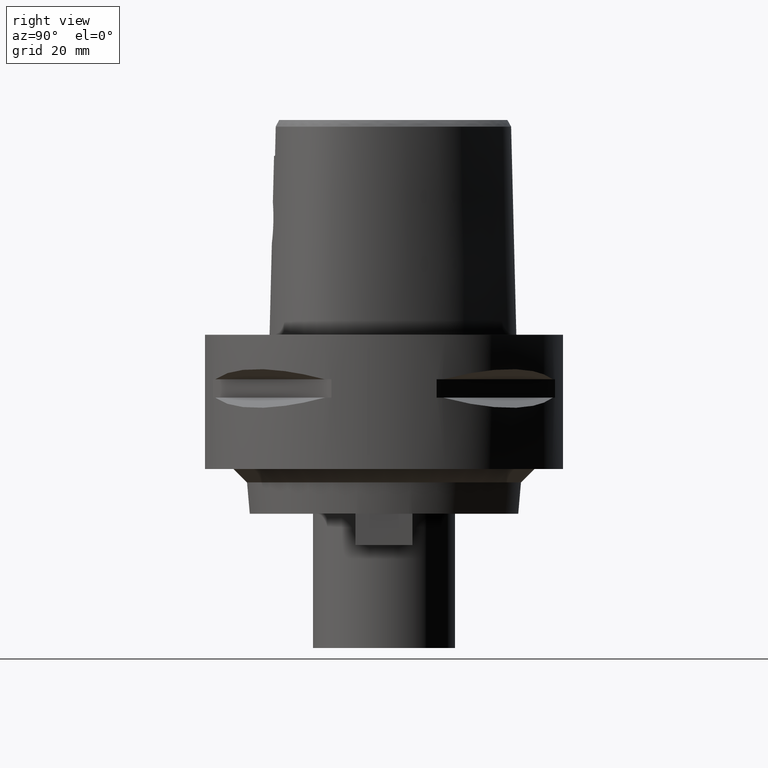
[diagram: clean part render]
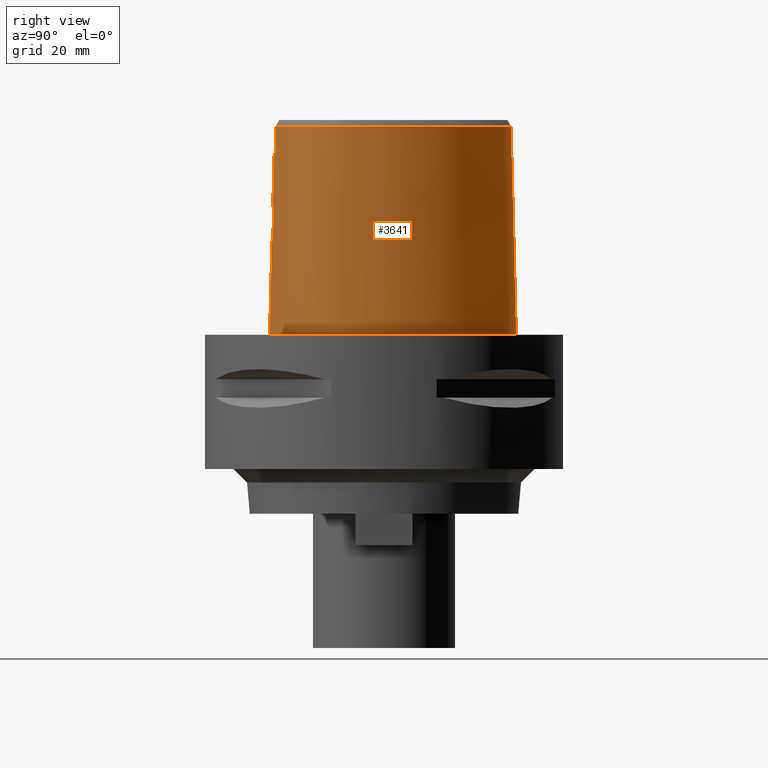
[diagram: same view with one face highlighted and labeled with its STEP entity id]
A machine part, right view. The second image highlights one B-rep face of the part: STEP entity #3641.
In plain terms, the highlighted face is a freeform B-spline surface patch.
Its self-contained STEP definition (entity closure, byte-faithful):
#136=CARTESIAN_POINT('',(4.472216720977E0,-2.420009030094E1,4.652069014669E1));
#146=CARTESIAN_POINT('',(-1.160764204055E-11,2.841206021535E1,
4.652071719451E1));
#147=CARTESIAN_POINT('',(4.335952336948E-1,2.841206021535E1,4.652071719450E1));
#148=CARTESIAN_POINT('',(1.298836000835E0,2.836960455487E1,4.652067124128E1));
#149=CARTESIAN_POINT('',(2.668499733405E0,2.816772072700E1,4.652072146498E1));
#150=CARTESIAN_POINT('',(4.103939706338E0,2.781317689664E1,4.652071702535E1));
#151=CARTESIAN_POINT('',(5.631402844044E0,2.727961259150E1,4.652071747526E1));
#152=CARTESIAN_POINT('',(7.176786529188E0,2.657653322831E1,4.652071613038E1));
#153=CARTESIAN_POINT('',(8.671252192221E0,2.574575701556E1,4.652072015318E1));
#154=CARTESIAN_POINT('',(1.015834870719E1,2.477318902836E1,4.652071082714E1));
#155=CARTESIAN_POINT('',(1.164832990643E1,2.364853177835E1,4.652072155981E1));
#156=CARTESIAN_POINT('',(1.312875962270E1,2.237825656012E1,4.652070888465E1));
#157=CARTESIAN_POINT('',(1.465098553460E1,2.090813162662E1,4.652072245798E1));
#158=CARTESIAN_POINT('',(1.626652832913E1,1.914957051098E1,4.652071450567E1));
#159=CARTESIAN_POINT('',(1.795563320286E1,1.706783974962E1,4.652071539184E1));
#160=CARTESIAN_POINT('',(1.975363834855E1,1.453473446753E1,4.652071347705E1));
#161=CARTESIAN_POINT('',(2.155716936923E1,1.155822634124E1,4.652072197703E1));
#162=CARTESIAN_POINT('',(2.306697559456E1,8.587424616191E0,4.652070100358E1));
#163=CARTESIAN_POINT('',(2.421004627175E1,5.895354429100E0,4.652073244141E1));
#164=CARTESIAN_POINT('',(2.505015637482E1,3.510146821122E0,4.652070587330E1));
#165=CARTESIAN_POINT('',(2.567078959280E1,1.343166075869E0,4.652072043837E1));
#166=CARTESIAN_POINT('',(2.611902555100E1,-6.678828843788E-1,4.652071500157E1));
#167=CARTESIAN_POINT('',(2.642053489398E1,-2.557286489412E0,4.652071677108E1));
#168=CARTESIAN_POINT('',(2.659104019638E1,-4.357617801450E0,4.652072398063E1));
#169=CARTESIAN_POINT('',(2.663599417218E1,-6.104319423169E0,4.652071791304E1));
#170=CARTESIAN_POINT('',(2.655096538778E1,-7.807175622504E0,4.652072592456E1));
#171=CARTESIAN_POINT('',(2.632808500539E1,-9.453711419702E0,4.652071391735E1));
#172=CARTESIAN_POINT('',(2.597810967464E1,-1.097059237304E1,4.652072040910E1));
#173=CARTESIAN_POINT('',(2.552289549273E1,-1.233553348749E1,4.652071411111E1));
#174=CARTESIAN_POINT('',(2.497710126689E1,-1.356362212286E1,4.652075637445E1));
#175=CARTESIAN_POINT('',(2.433574961938E1,-1.469279289113E1,4.652070714385E1));
#176=CARTESIAN_POINT('',(2.356747165429E1,-1.578016006274E1,4.652071770639E1));
#177=CARTESIAN_POINT('',(2.263820076255E1,-1.685800101879E1,4.652072205118E1));
#178=CARTESIAN_POINT('',(2.152843978093E1,-1.792150692750E1,4.652072129465E1));
#179=CARTESIAN_POINT('',(2.023026030740E1,-1.895205986560E1,4.652071540741E1));
#180=CARTESIAN_POINT('',(1.881572170598E1,-1.988841747355E1,4.652072159180E1));
#181=CARTESIAN_POINT('',(1.730192861874E1,-2.073219096132E1,4.652071564392E1));
#182=CARTESIAN_POINT('',(1.567017737153E1,-2.149826074060E1,4.652072072336E1));
#183=CARTESIAN_POINT('',(1.390154586593E1,-2.219276420669E1,4.652071725682E1));
#184=CARTESIAN_POINT('',(1.196971964875E1,-2.281767931241E1,4.652071698118E1));
#185=CARTESIAN_POINT('',(9.827544374077E0,-2.337244522506E1,4.652070599539E1));
#186=CARTESIAN_POINT('',(7.389364390320E0,-2.385190714088E1,4.652075206294E1));
#187=CARTESIAN_POINT('',(5.484440424824E0,-2.410319453391E1,4.652065282259E1));
#188=CARTESIAN_POINT('',(4.472216720977E0,-2.420009030094E1,4.652069014669E1));
#267=DIRECTION('',(1.388127457203E-9,-2.499239851702E-2,-9.996876412242E-1));
#268=VECTOR('',#267,1.045326522127E1);
#269=CARTESIAN_POINT('',(-1.451045074373E-8,-2.457504746727E1,
4.000000005214E1));
#270=LINE('',#269,#268);
#289=CARTESIAN_POINT('',(-2.560076268967E-12,-2.506378435149E1,2.045E1));
#294=DIRECTION('',(-8.815982356218E-13,-2.499051295404E-2,-9.996876883619E-1));
#295=VECTOR('',#294,2.045638876829E1);
#296=CARTESIAN_POINT('',(-2.560076268967E-12,-2.506378435149E1,2.045E1));
#297=LINE('',#296,#295);
#317=CARTESIAN_POINT('',(-2.059439251428E-11,-2.5575E1,1.336708521649E-13));
#318=CARTESIAN_POINT('',(1.160837738909E0,-2.5575E1,1.336708521649E-13));
#319=CARTESIAN_POINT('',(3.433154720799E0,-2.549351859265E1,
-6.203685838656E-14));
#320=CARTESIAN_POINT('',(6.738235855176E0,-2.513956879382E1,
1.662272610564E-14));
#321=CARTESIAN_POINT('',(9.805933169051E0,-2.458290209868E1,0.E0));
#322=CARTESIAN_POINT('',(1.258914309395E1,-2.386187357320E1,0.E0));
#323=CARTESIAN_POINT('',(1.506328645915E1,-2.301499781879E1,0.E0));
#324=CARTESIAN_POINT('',(1.723107437250E1,-2.207676147325E1,0.E0));
#325=CARTESIAN_POINT('',(1.911153871068E1,-2.107416886273E1,0.E0));
#326=CARTESIAN_POINT('',(2.073108512903E1,-2.002707462124E1,0.E0));
#327=CARTESIAN_POINT('',(2.211850425625E1,-1.894850765775E1,0.E0));
#328=CARTESIAN_POINT('',(2.330173141220E1,-1.784586318772E1,0.E0));
#329=CARTESIAN_POINT('',(2.430655438460E1,-1.671975615522E1,0.E0));
#330=CARTESIAN_POINT('',(2.514698345940E1,-1.557907194924E1,0.E0));
#331=CARTESIAN_POINT('',(2.585388093531E1,-1.439955197115E1,0.E0));
#332=CARTESIAN_POINT('',(2.645432557519E1,-1.313597319934E1,0.E0));
#333=CARTESIAN_POINT('',(2.696023956879E1,-1.174836701720E1,0.E0));
#334=CARTESIAN_POINT('',(2.736098702479E1,-1.022295065622E1,0.E0));
#335=CARTESIAN_POINT('',(2.764432658551E1,-8.538988996197E0,0.E0));
#336=CARTESIAN_POINT('',(2.779165781465E1,-6.676297820606E0,0.E0));
#337=CARTESIAN_POINT('',(2.777904661009E1,-4.615298251260E0,0.E0));
#338=CARTESIAN_POINT('',(2.757739342844E1,-2.340690672094E0,0.E0));
#339=CARTESIAN_POINT('',(2.715425168295E1,1.541000172292E-1,0.E0));
#340=CARTESIAN_POINT('',(2.647724834679E1,2.861127772862E0,0.E0));
#341=CARTESIAN_POINT('',(2.552041653914E1,5.749548752166E0,0.E0));
#342=CARTESIAN_POINT('',(2.427244382692E1,8.761173026831E0,0.E0));
#343=CARTESIAN_POINT('',(2.274312557877E1,1.181252633371E1,0.E0));
#344=CARTESIAN_POINT('',(2.097736779945E1,1.478710843765E1,0.E0));
#345=CARTESIAN_POINT('',(1.905596609776E1,1.755401741297E1,0.E0));
#346=CARTESIAN_POINT('',(1.705118698549E1,2.003809502297E1,0.E0));
#347=CARTESIAN_POINT('',(1.502862470592E1,2.219791321460E1,0.E0));
#348=CARTESIAN_POINT('',(1.303923746304E1,2.402423423136E1,0.E0));
#349=CARTESIAN_POINT('',(1.111596003635E1,2.553181119584E1,0.E0));
#350=CARTESIAN_POINT('',(9.277688854321E0,2.674762626738E1,0.E0));
#351=CARTESIAN_POINT('',(7.530916481926E0,2.770446965134E1,0.E0));
#352=CARTESIAN_POINT('',(5.874469891184E0,2.843459091317E1,0.E0));
#353=CARTESIAN_POINT('',(4.302285328654E0,2.896705340057E1,0.E0));
#354=CARTESIAN_POINT('',(2.804559767773E0,2.932630203642E1,1.581736146874E-14));
#355=CARTESIAN_POINT('',(1.373059236148E0,2.953141713411E1,
-5.903119664302E-14));
#356=CARTESIAN_POINT('',(4.515845792842E-1,2.957499999999E1,
1.271945511879E-13));
#357=CARTESIAN_POINT('',(4.617328946210E-11,2.957499999999E1,
1.271945511879E-13));
#362=CARTESIAN_POINT('',(4.617328946210E-11,2.957499999999E1,
1.271945511879E-13));
#402=CARTESIAN_POINT('',(-2.059439251428E-11,-2.5575E1,1.336708521649E-13));
#1283=CARTESIAN_POINT('',(-2.560076268967E-12,-2.506378435149E1,2.045E1));
#1284=CARTESIAN_POINT('',(3.640636066804E-1,-2.506378435149E1,2.045E1));
#1285=CARTESIAN_POINT('',(1.093587317456E0,-2.505318671391E1,2.053812457848E1));
#1286=CARTESIAN_POINT('',(2.126648524297E0,-2.500837275586E1,2.092673593854E1));
#1287=CARTESIAN_POINT('',(3.044598612337E0,-2.494205772956E1,2.155990039914E1));
#1288=CARTESIAN_POINT('',(3.767952882119E0,-2.486902831460E1,2.237255739216E1));
#1289=CARTESIAN_POINT('',(4.289497133364E0,-2.479936908258E1,2.335290496781E1));
#1290=CARTESIAN_POINT('',(4.558432144963E0,-2.474673754284E1,2.442620046468E1));
#1291=CARTESIAN_POINT('',(4.563130151666E0,-2.471845911148E1,2.553357993224E1));
#1292=CARTESIAN_POINT('',(4.304919619077E0,-2.471628324335E1,2.660483374799E1));
#1293=CARTESIAN_POINT('',(3.795697726320E0,-2.473598251672E1,2.758805005232E1));
#1294=CARTESIAN_POINT('',(3.070936197611E0,-2.476858391159E1,2.841818825488E1));
#1295=CARTESIAN_POINT('',(2.146514789584E0,-2.480394257094E1,2.906416876743E1));
#1296=CARTESIAN_POINT('',(1.099396065327E0,-2.483003183891E1,2.946150918468E1));
#1297=CARTESIAN_POINT('',(3.653878835408E-1,-2.483629963748E1,2.955E1));
#1298=CARTESIAN_POINT('',(1.372734075402E-14,-2.483629963748E1,2.955E1));
#1303=CARTESIAN_POINT('',(4.602925666819E0,-2.435121855888E1,4.000000005215E1));
#1304=CARTESIAN_POINT('',(4.588866179295E0,-2.433440439141E1,4.072434907413E1));
#1305=CARTESIAN_POINT('',(4.559961371654E0,-2.430022591468E1,4.217314077647E1));
#1306=CARTESIAN_POINT('',(4.516393969032E0,-2.424985530019E1,4.434670381198E1));
#1307=CARTESIAN_POINT('',(4.487210999458E0,-2.421685509515E1,4.579599754735E1));
#1308=CARTESIAN_POINT('',(4.472216720977E0,-2.420009030094E1,4.652069014669E1));
#1313=DIRECTION('',(1.241659400989E-12,2.499051293969E-2,-9.996876883622E-1));
#1314=VECTOR('',#1313,4.653525069487E1);
#1315=CARTESIAN_POINT('',(-1.160764204055E-11,2.841206021535E1,
4.652071719451E1));
#1316=LINE('',#1315,#1314);
#1320=CARTESIAN_POINT('',(4.602925666819E0,-2.435121855888E1,4.000000005215E1));
#1321=CARTESIAN_POINT('',(4.092928303446E0,-2.440134250249E1,4.000000005215E1));
#1322=CARTESIAN_POINT('',(3.071957671088E0,-2.448406991541E1,3.999999998262E1));
#1323=CARTESIAN_POINT('',(1.536621751535E0,-2.455890147071E1,3.999999998262E1));
#1324=CARTESIAN_POINT('',(5.124223333400E-1,-2.457504746727E1,
4.000000005214E1));
#1325=CARTESIAN_POINT('',(-1.451045074373E-8,-2.457504746727E1,
4.000000005214E1));
#1330=CARTESIAN_POINT('',(-1.451045074373E-8,-2.457504746727E1,
4.000000005214E1));
#1809=VERTEX_POINT('',#136);
#1810=VERTEX_POINT('',#1303);
#1814=CARTESIAN_POINT('',(-1.160764204055E-11,2.841206021535E1,
4.652071719451E1));
#1815=VERTEX_POINT('',#1814);
#1816=VERTEX_POINT('',#362);
#1817=VERTEX_POINT('',#402);
#1818=VERTEX_POINT('',#1330);
#1819=CARTESIAN_POINT('',(1.372734075387E-14,-2.483629963748E1,2.955E1));
#1820=VERTEX_POINT('',#1819);
#1821=VERTEX_POINT('',#289);
#3521=CARTESIAN_POINT('',(-8.532294279156E-1,-2.559082453958E1,
-9.304148233583E-1));
#3522=CARTESIAN_POINT('',(-8.462047034923E-1,-2.518772786916E1,
1.519677544819E1));
#3523=CARTESIAN_POINT('',(-8.391799790691E-1,-2.478463119873E1,
3.132396571973E1));
#3524=CARTESIAN_POINT('',(-8.321552546458E-1,-2.438153452831E1,
4.745115599127E1));
#3525=CARTESIAN_POINT('',(-5.689009027242E-1,-2.559577918651E1,
-9.304148233583E-1));
#3526=CARTESIAN_POINT('',(-5.642169907608E-1,-2.519264550214E1,
1.519677544819E1));
#3527=CARTESIAN_POINT('',(-5.595330787974E-1,-2.478951181778E1,
3.132396571973E1));
#3528=CARTESIAN_POINT('',(-5.548491668340E-1,-2.438637813342E1,
4.745115599127E1));
#3529=CARTESIAN_POINT('',(2.393561154777E0,-2.562160366737E1,
-9.304148233583E-1));
#3530=CARTESIAN_POINT('',(2.373865153546E0,-2.521827228824E1,1.519677544819E1));
#3531=CARTESIAN_POINT('',(2.354169152315E0,-2.481494090910E1,3.132396571973E1));
#3532=CARTESIAN_POINT('',(2.334473151084E0,-2.441160952997E1,4.745115599127E1));
#3533=CARTESIAN_POINT('',(6.695047937695E0,-2.526858195482E1,
-9.304148233583E-1));
#3534=CARTESIAN_POINT('',(6.639625057295E0,-2.486795307130E1,1.519677544819E1));
#3535=CARTESIAN_POINT('',(6.584202176895E0,-2.446732418777E1,3.132396571973E1));
#3536=CARTESIAN_POINT('',(6.528779296495E0,-2.406669530424E1,4.745115599127E1));
#3537=CARTESIAN_POINT('',(1.174634101710E1,-2.415815461932E1,
-9.304148233583E-1));
#3538=CARTESIAN_POINT('',(1.164093420306E1,-2.376831830118E1,1.519677544819E1));
#3539=CARTESIAN_POINT('',(1.153552738901E1,-2.337848198304E1,3.132396571973E1));
#3540=CARTESIAN_POINT('',(1.143012057497E1,-2.298864566490E1,4.745115599127E1));
#3541=CARTESIAN_POINT('',(1.530623779916E1,-2.298697010996E1,
-9.304148233583E-1));
#3542=CARTESIAN_POINT('',(1.515935277006E1,-2.261055591229E1,1.519677544819E1));
#3543=CARTESIAN_POINT('',(1.501246774096E1,-2.223414171462E1,3.132396571973E1));
#3544=CARTESIAN_POINT('',(1.486558271187E1,-2.185772751695E1,4.745115599127E1));
#3545=CARTESIAN_POINT('',(1.856135208812E1,-2.147443747454E1,
-9.304148233583E-1));
#3546=CARTESIAN_POINT('',(1.836798840178E1,-2.111923999920E1,1.519677544819E1));
#3547=CARTESIAN_POINT('',(1.817462471545E1,-2.076404252387E1,3.132396571973E1));
#3548=CARTESIAN_POINT('',(1.798126102911E1,-2.040884504853E1,4.745115599127E1));
#3549=CARTESIAN_POINT('',(2.143542293775E1,-1.961750339825E1,
-9.304148233583E-1));
#3550=CARTESIAN_POINT('',(2.119046230658E1,-1.929498355775E1,1.519677544819E1));
#3551=CARTESIAN_POINT('',(2.094550167542E1,-1.897246371725E1,3.132396571973E1));
#3552=CARTESIAN_POINT('',(2.070054104425E1,-1.864994387676E1,4.745115599127E1));
#3553=CARTESIAN_POINT('',(2.344929528779E1,-1.778045352554E1,
-9.304148233583E-1));
#3554=CARTESIAN_POINT('',(2.315870194910E1,-1.749879684332E1,1.519677544819E1));
#3555=CARTESIAN_POINT('',(2.286810861040E1,-1.721714016109E1,3.132396571973E1));
#3556=CARTESIAN_POINT('',(2.257751527171E1,-1.693548347887E1,4.745115599127E1));
#3557=CARTESIAN_POINT('',(2.479336082149E1,-1.613554022965E1,
-9.304148233583E-1));
#3558=CARTESIAN_POINT('',(2.446791212135E1,-1.589630645726E1,1.519677544819E1));
#3559=CARTESIAN_POINT('',(2.414246342122E1,-1.565707268487E1,3.132396571973E1));
#3560=CARTESIAN_POINT('',(2.381701472109E1,-1.541783891247E1,4.745115599127E1));
#3561=CARTESIAN_POINT('',(2.565830880916E1,-1.481383149794E1,
-9.304148233583E-1));
#3562=CARTESIAN_POINT('',(2.530843702613E1,-1.461183292958E1,1.519677544819E1));
#3563=CARTESIAN_POINT('',(2.495856524310E1,-1.440983436123E1,3.132396571973E1));
#3564=CARTESIAN_POINT('',(2.460869346007E1,-1.420783579287E1,4.745115599127E1));
#3565=CARTESIAN_POINT('',(2.637046815335E1,-1.340391020168E1,
-9.304148233583E-1));
#3566=CARTESIAN_POINT('',(2.600056128E1,-1.324168024750E1,1.519677544819E1));
#3567=CARTESIAN_POINT('',(2.563065440664E1,-1.307945029331E1,3.132396571973E1));
#3568=CARTESIAN_POINT('',(2.526074753328E1,-1.291722033912E1,4.745115599127E1));
#3569=CARTESIAN_POINT('',(2.712297208818E1,-1.141745865779E1,
-9.304148233583E-1));
#3570=CARTESIAN_POINT('',(2.673375357066E1,-1.130662577705E1,1.519677544819E1));
#3571=CARTESIAN_POINT('',(2.634453505314E1,-1.119579289630E1,3.132396571973E1));
#3572=CARTESIAN_POINT('',(2.595531653563E1,-1.108496001556E1,4.745115599127E1));
#3573=CARTESIAN_POINT('',(2.770696776766E1,-8.754869101927E0,
-9.304148233583E-1));
#3574=CARTESIAN_POINT('',(2.730517712772E1,-8.703986960185E0,1.519677544819E1));
#3575=CARTESIAN_POINT('',(2.690338648778E1,-8.653104818443E0,3.132396571973E1));
#3576=CARTESIAN_POINT('',(2.650159584784E1,-8.602222676701E0,4.745115599127E1));
#3577=CARTESIAN_POINT('',(2.787808443968E1,-5.337383713850E0,
-9.304148233583E-1));
#3578=CARTESIAN_POINT('',(2.747379237416E1,-5.347524340443E0,1.519677544819E1));
#3579=CARTESIAN_POINT('',(2.706950030864E1,-5.357664967036E0,3.132396571973E1));
#3580=CARTESIAN_POINT('',(2.666520824312E1,-5.367805593630E0,4.745115599127E1));
#3581=CARTESIAN_POINT('',(2.756041893099E1,-1.762105662452E0,
-9.304148233583E-1));
#3582=CARTESIAN_POINT('',(2.716099284958E1,-1.823107513293E0,1.519677544819E1));
#3583=CARTESIAN_POINT('',(2.676156676818E1,-1.884109364135E0,3.132396571973E1));
#3584=CARTESIAN_POINT('',(2.636214068678E1,-1.945111214977E0,4.745115599127E1));
#3585=CARTESIAN_POINT('',(2.679474626612E1,1.906447389559E0,
-9.304148233583E-1));
#3586=CARTESIAN_POINT('',(2.640443212695E1,1.802817637195E0,1.519677544819E1));
#3587=CARTESIAN_POINT('',(2.601411798777E1,1.699187884830E0,3.132396571973E1));
#3588=CARTESIAN_POINT('',(2.562380384859E1,1.595558132465E0,4.745115599127E1));
#3589=CARTESIAN_POINT('',(2.523075706987E1,6.836210433841E0,
-9.304148233583E-1));
#3590=CARTESIAN_POINT('',(2.485610452302E1,6.683875413928E0,1.519677544819E1));
#3591=CARTESIAN_POINT('',(2.448145197617E1,6.531540394015E0,3.132396571973E1));
#3592=CARTESIAN_POINT('',(2.410679942931E1,6.379205374102E0,4.745115599127E1));
#3593=CARTESIAN_POINT('',(2.235908248521E1,1.290902243486E1,
-9.304148233583E-1));
#3594=CARTESIAN_POINT('',(2.200846680798E1,1.270659189731E1,1.519677544819E1));
#3595=CARTESIAN_POINT('',(2.165785113075E1,1.250416135975E1,3.132396571973E1));
#3596=CARTESIAN_POINT('',(2.130723545351E1,1.230173082220E1,4.745115599127E1));
#3597=CARTESIAN_POINT('',(1.777103259300E1,1.953703865E1,-9.304148233583E-1));
#3598=CARTESIAN_POINT('',(1.745811251711E1,1.927961871660E1,1.519677544819E1));
#3599=CARTESIAN_POINT('',(1.714519244121E1,1.902219878320E1,3.132396571973E1));
#3600=CARTESIAN_POINT('',(1.683227236532E1,1.876477884980E1,4.745115599127E1));
#3601=CARTESIAN_POINT('',(1.323332856865E1,2.406149250560E1,
-9.304148233583E-1));
#3602=CARTESIAN_POINT('',(1.296695400659E1,2.375598699181E1,1.519677544819E1));
#3603=CARTESIAN_POINT('',(1.270057944453E1,2.345048147801E1,3.132396571973E1));
#3604=CARTESIAN_POINT('',(1.243420488247E1,2.314497596422E1,4.745115599127E1));
#3605=CARTESIAN_POINT('',(9.316733121799E0,2.681182151381E1,
-9.304148233583E-1));
#3606=CARTESIAN_POINT('',(9.105791391902E0,2.646675902440E1,1.519677544819E1));
#3607=CARTESIAN_POINT('',(8.894849662004E0,2.612169653499E1,3.132396571973E1));
#3608=CARTESIAN_POINT('',(8.683907932107E0,2.577663404558E1,4.745115599127E1));
#3609=CARTESIAN_POINT('',(6.271543173882E0,2.837237221324E1,
-9.304148233583E-1));
#3610=CARTESIAN_POINT('',(6.114741869661E0,2.799897520454E1,1.519677544819E1));
#3611=CARTESIAN_POINT('',(5.957940565440E0,2.762557819583E1,3.132396571973E1));
#3612=CARTESIAN_POINT('',(5.801139261218E0,2.725218118713E1,4.745115599127E1));
#3613=CARTESIAN_POINT('',(3.154109048376E0,2.936302094227E1,
-9.304148233583E-1));
#3614=CARTESIAN_POINT('',(3.067023368044E0,2.896669960969E1,1.519677544819E1));
#3615=CARTESIAN_POINT('',(2.979937687713E0,2.857037827712E1,3.132396571973E1));
#3616=CARTESIAN_POINT('',(2.892852007381E0,2.817405694454E1,4.745115599127E1));
#3617=CARTESIAN_POINT('',(7.484115212426E-1,2.963215902785E1,
-9.304148233583E-1));
#3618=CARTESIAN_POINT('',(7.265635584564E-1,2.922802189498E1,1.519677544819E1));
#3619=CARTESIAN_POINT('',(7.047155956703E-1,2.882388476211E1,3.132396571973E1));
#3620=CARTESIAN_POINT('',(6.828676328842E-1,2.841974762923E1,4.745115599127E1));
#3621=CARTESIAN_POINT('',(-6.060951007291E-1,2.958848805990E1,
-9.304148233583E-1));
#3622=CARTESIAN_POINT('',(-5.886350938288E-1,2.918561913685E1,
1.519677544819E1));
#3623=CARTESIAN_POINT('',(-5.711750869285E-1,2.878275021380E1,
3.132396571973E1));
#3624=CARTESIAN_POINT('',(-5.537150800282E-1,2.837988129075E1,
4.745115599127E1));
#3625=CARTESIAN_POINT('',(-9.090099850544E-1,2.956867552461E1,
-9.304148233583E-1));
#3626=CARTESIAN_POINT('',(-8.826520944043E-1,2.916640528106E1,
1.519677544819E1));
#3627=CARTESIAN_POINT('',(-8.562942037542E-1,2.876413503750E1,
3.132396571973E1));
#3628=CARTESIAN_POINT('',(-8.299363131040E-1,2.836186479395E1,
4.745115599127E1));
#3629=B_SPLINE_SURFACE_WITH_KNOTS('',3,3,((#3521,#3522,#3523,#3524),(#3525,
#3526,#3527,#3528),(#3529,#3530,#3531,#3532),(#3533,#3534,#3535,#3536),(#3537,
#3538,#3539,#3540),(#3541,#3542,#3543,#3544),(#3545,#3546,#3547,#3548),(#3549,
#3550,#3551,#3552),(#3553,#3554,#3555,#3556),(#3557,#3558,#3559,#3560),(#3561,
#3562,#3563,#3564),(#3565,#3566,#3567,#3568),(#3569,#3570,#3571,#3572),(#3573,
#3574,#3575,#3576),(#3577,#3578,#3579,#3580),(#3581,#3582,#3583,#3584),(#3585,
#3586,#3587,#3588),(#3589,#3590,#3591,#3592),(#3593,#3594,#3595,#3596),(#3597,
#3598,#3599,#3600),(#3601,#3602,#3603,#3604),(#3605,#3606,#3607,#3608),(#3609,
#3610,#3611,#3612),(#3613,#3614,#3615,#3616),(#3617,#3618,#3619,#3620),(#3621,
#3622,#3623,#3624),(#3625,#3626,#3627,#3628)),.UNSPECIFIED.,.F.,.F.,.F.,(4,1,1,
1,1,1,1,1,1,1,1,1,1,1,1,1,1,1,1,1,1,1,1,1,4),(4,4),(-8.851417483065E-3,0.E0,
8.333333333349E-2,1.250000000001E-1,1.666666666668E-1,2.083333333334E-1,
2.500000000001E-1,2.916666666667E-1,3.125E-1,3.333333333333E-1,
3.541666666667E-1,3.75E-1,4.166666666666E-1,4.583333333332E-1,4.999999999999E-1,
5.416666666666E-1,5.833333333331E-1,6.666666666665E-1,7.499999999997E-1,
8.333333333330E-1,8.749999999996E-1,9.166666666663E-1,9.583333333329E-1,1.E0,
1.012009199036E0),(-1.941071678391E-9,1.000000098995E0),.UNSPECIFIED.);
#3630=ORIENTED_EDGE('',*,*,#2762,.F.);
#3631=ORIENTED_EDGE('',*,*,#2746,.F.);
#3632=ORIENTED_EDGE('',*,*,#3513,.T.);
#3633=ORIENTED_EDGE('',*,*,#2742,.F.);
#3635=ORIENTED_EDGE('',*,*,#3634,.F.);
#3636=ORIENTED_EDGE('',*,*,#2043,.T.);
#3637=ORIENTED_EDGE('',*,*,#2335,.F.);
#3638=ORIENTED_EDGE('',*,*,#2736,.T.);
#3639=EDGE_LOOP('',(#3630,#3631,#3632,#3633,#3635,#3636,#3637,#3638));
#3640=FACE_OUTER_BOUND('',#3639,.F.);
#189=B_SPLINE_CURVE_WITH_KNOTS('',3,(#146,#147,#148,#149,#150,#151,#152,#153,
#154,#155,#156,#157,#158,#159,#160,#161,#162,#163,#164,#165,#166,#167,#168,#169,
#170,#171,#172,#173,#174,#175,#176,#177,#178,#179,#180,#181,#182,#183,#184,#185,
#186,#187,#188),.UNSPECIFIED.,.F.,.F.,(4,1,1,1,1,1,1,1,1,1,1,1,1,1,1,1,1,1,1,1,
1,1,1,1,1,1,1,1,1,1,1,1,1,1,1,1,1,1,1,1,4),(0.E0,2.5E-2,5.E-2,7.5E-2,1.E-1,
1.25E-1,1.5E-1,1.75E-1,2.E-1,2.25E-1,2.5E-1,2.75E-1,3.E-1,3.25E-1,3.5E-1,
3.75E-1,4.E-1,4.25E-1,4.5E-1,4.75E-1,5.E-1,5.25E-1,5.5E-1,5.75E-1,6.E-1,6.25E-1,
6.5E-1,6.75E-1,7.E-1,7.25E-1,7.5E-1,7.75E-1,8.E-1,8.25E-1,8.5E-1,8.75E-1,9.E-1,
9.25E-1,9.5E-1,9.75E-1,1.E0),.UNSPECIFIED.);
#358=B_SPLINE_CURVE_WITH_KNOTS('',3,(#317,#318,#319,#320,#321,#322,#323,#324,
#325,#326,#327,#328,#329,#330,#331,#332,#333,#334,#335,#336,#337,#338,#339,#340,
#341,#342,#343,#344,#345,#346,#347,#348,#349,#350,#351,#352,#353,#354,#355,#356,
#357),.UNSPECIFIED.,.F.,.F.,(4,1,1,1,1,1,1,1,1,1,1,1,1,1,1,1,1,1,1,1,1,1,1,1,1,
1,1,1,1,1,1,1,1,1,1,1,1,1,4),(0.E0,2.631578947368E-2,5.263157894737E-2,
7.894736842105E-2,1.052631578947E-1,1.315789473684E-1,1.578947368421E-1,
1.842105263158E-1,2.105263157895E-1,2.368421052632E-1,2.631578947368E-1,
2.894736842105E-1,3.157894736842E-1,3.421052631579E-1,3.684210526316E-1,
3.947368421053E-1,4.210526315789E-1,4.473684210526E-1,4.736842105263E-1,5.E-1,
5.263157894737E-1,5.526315789474E-1,5.789473684211E-1,6.052631578947E-1,
6.315789473684E-1,6.578947368421E-1,6.842105263158E-1,7.105263157895E-1,
7.368421052632E-1,7.631578947368E-1,7.894736842105E-1,8.157894736842E-1,
8.421052631579E-1,8.684210526316E-1,8.947368421053E-1,9.210526315789E-1,
9.473684210526E-1,9.736842105263E-1,1.E0),.UNSPECIFIED.);
#1299=B_SPLINE_CURVE_WITH_KNOTS('',3,(#1283,#1284,#1285,#1286,#1287,#1288,#1289,
#1290,#1291,#1292,#1293,#1294,#1295,#1296,#1297,#1298),.UNSPECIFIED.,.F.,.F.,(4,
1,1,1,1,1,1,1,1,1,1,1,1,4),(0.E0,7.692307692308E-2,1.538461538462E-1,
2.307692307692E-1,3.076923076923E-1,3.846153846154E-1,4.615384615385E-1,
5.384615384615E-1,6.153846153846E-1,6.923076923077E-1,7.692307692308E-1,
8.461538461538E-1,9.230769230769E-1,1.E0),.UNSPECIFIED.);
#1309=B_SPLINE_CURVE_WITH_KNOTS('',3,(#1303,#1304,#1305,#1306,#1307,#1308),
.UNSPECIFIED.,.F.,.F.,(4,1,1,4),(0.E0,3.333333333333E-1,6.666666666667E-1,1.E0),
.UNSPECIFIED.);
#1326=B_SPLINE_CURVE_WITH_KNOTS('',3,(#1320,#1321,#1322,#1323,#1324,#1325),
.UNSPECIFIED.,.F.,.F.,(4,1,1,4),(0.E0,3.333333333333E-1,6.666666666667E-1,1.E0),
.UNSPECIFIED.);
#2043=EDGE_CURVE('',#1810,#1809,#1309,.T.);
#2335=EDGE_CURVE('',#1815,#1809,#189,.T.);
#2736=EDGE_CURVE('',#1815,#1816,#1316,.T.);
#2742=EDGE_CURVE('',#1818,#1820,#270,.T.);
#2746=EDGE_CURVE('',#1821,#1817,#297,.T.);
#2762=EDGE_CURVE('',#1817,#1816,#358,.T.);
#3513=EDGE_CURVE('',#1821,#1820,#1299,.T.);
#3634=EDGE_CURVE('',#1810,#1818,#1326,.T.);
#3641=ADVANCED_FACE('',(#3640),#3629,.T.);